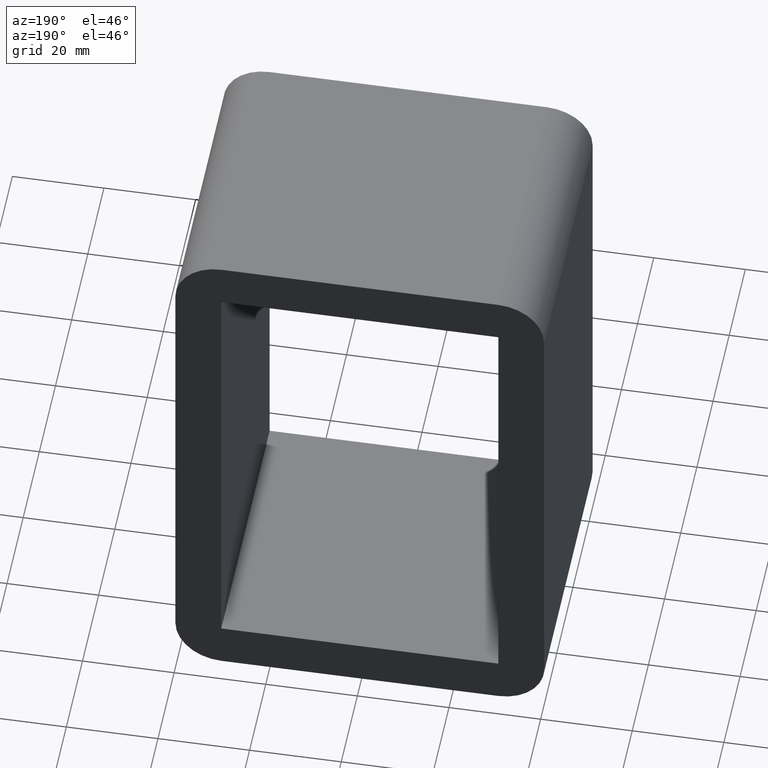
[diagram: clean part render]
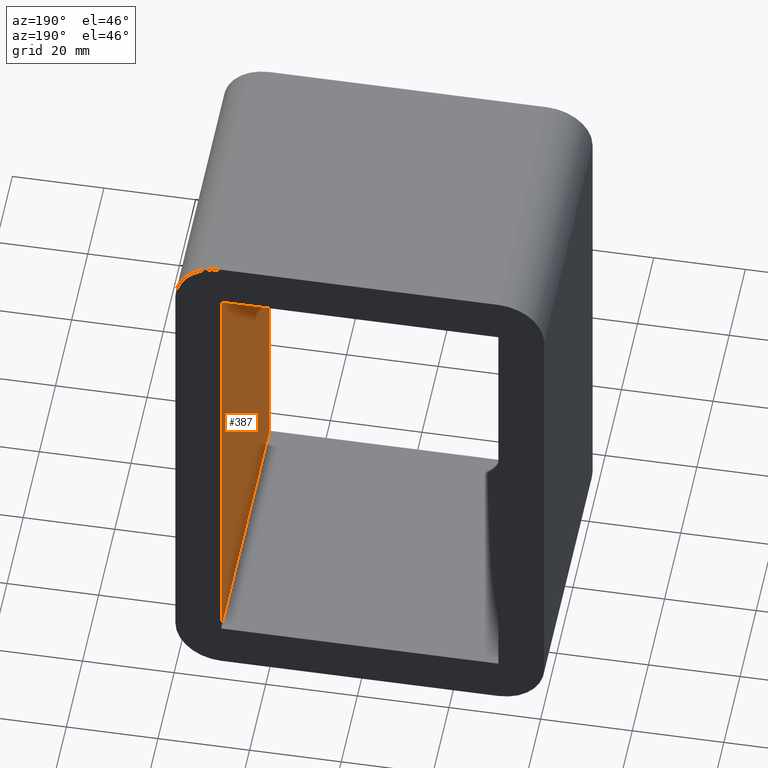
[diagram: same view with one face highlighted and labeled with its STEP entity id]
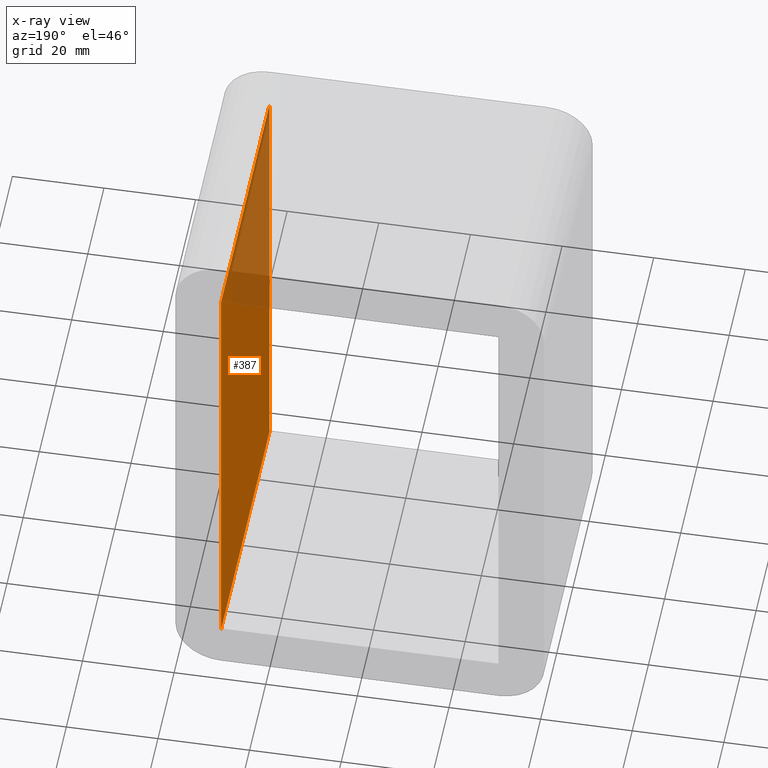
[diagram: x-ray of the same camera — body ghosted, the highlighted face saturated]
A machine part, auxiliary view. The second image highlights one B-rep face of the part: STEP entity #387.
The next image is the same camera in x-ray: the body ghosted, the highlighted face saturated — about 27% of this face is hidden behind the body in this view.
In plain terms, the highlighted planar face has unit normal (1, 0, 0).
Its self-contained STEP definition (entity closure, byte-faithful):
#175=CARTESIAN_POINT('',(30.250000000000004,-3.0,50.500000000000007));
#176=VERTEX_POINT('',#175);
#177=CARTESIAN_POINT('',(30.250000000000004,-3.0,-50.500000000000007));
#178=VERTEX_POINT('',#177);
#179=CARTESIAN_POINT('',(30.250000000000004,-3.0,50.500000000000007));
#180=DIRECTION('',(0.0,0.0,-1.0));
#181=VECTOR('',#180,101.00000000000003);
#182=LINE('',#179,#181);
#183=EDGE_CURVE('',#176,#178,#182,.T.);
#357=CARTESIAN_POINT('',(30.250000000000004,0.0,50.500000000000007));
#358=DIRECTION('',(1.0,0.0,0.0));
#359=DIRECTION('',(0.0,0.0,-1.0));
#360=AXIS2_PLACEMENT_3D('',#357,#358,#359);
#361=PLANE('',#360);
#362=CARTESIAN_POINT('',(30.250000000000004,57.0,-50.500000000000007));
#363=VERTEX_POINT('',#362);
#364=CARTESIAN_POINT('',(30.250000000000004,57.0,-50.500000000000007));
#365=DIRECTION('',(0.0,-1.0,0.0));
#366=VECTOR('',#365,60.0);
#367=LINE('',#364,#366);
#368=EDGE_CURVE('',#363,#178,#367,.T.);
#369=ORIENTED_EDGE('',*,*,#368,.T.);
#370=ORIENTED_EDGE('',*,*,#183,.F.);
#371=CARTESIAN_POINT('',(30.250000000000004,57.0,50.500000000000007));
#372=VERTEX_POINT('',#371);
#373=CARTESIAN_POINT('',(30.250000000000004,-3.0,50.500000000000007));
#374=DIRECTION('',(0.0,1.0,0.0));
#375=VECTOR('',#374,60.0);
#376=LINE('',#373,#375);
#377=EDGE_CURVE('',#176,#372,#376,.T.);
#378=ORIENTED_EDGE('',*,*,#377,.T.);
#379=CARTESIAN_POINT('',(30.250000000000004,57.0,-50.500000000000014));
#380=DIRECTION('',(0.0,0.0,1.0));
#381=VECTOR('',#380,101.00000000000003);
#382=LINE('',#379,#381);
#383=EDGE_CURVE('',#363,#372,#382,.T.);
#384=ORIENTED_EDGE('',*,*,#383,.F.);
#385=EDGE_LOOP('',(#369,#370,#378,#384));
#386=FACE_OUTER_BOUND('',#385,.T.);
#387=ADVANCED_FACE('',(#386),#361,.F.);